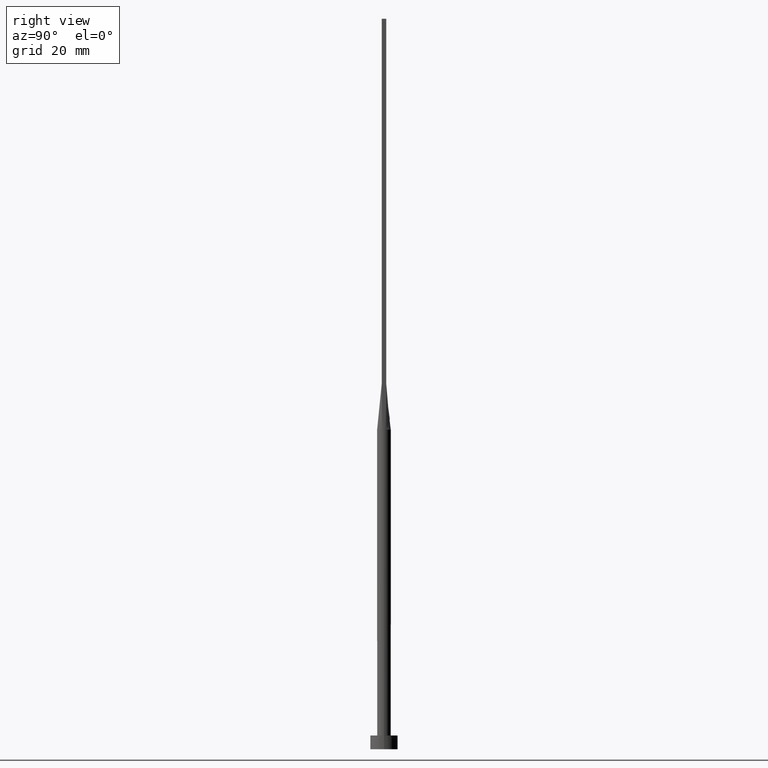
[diagram: clean part render]
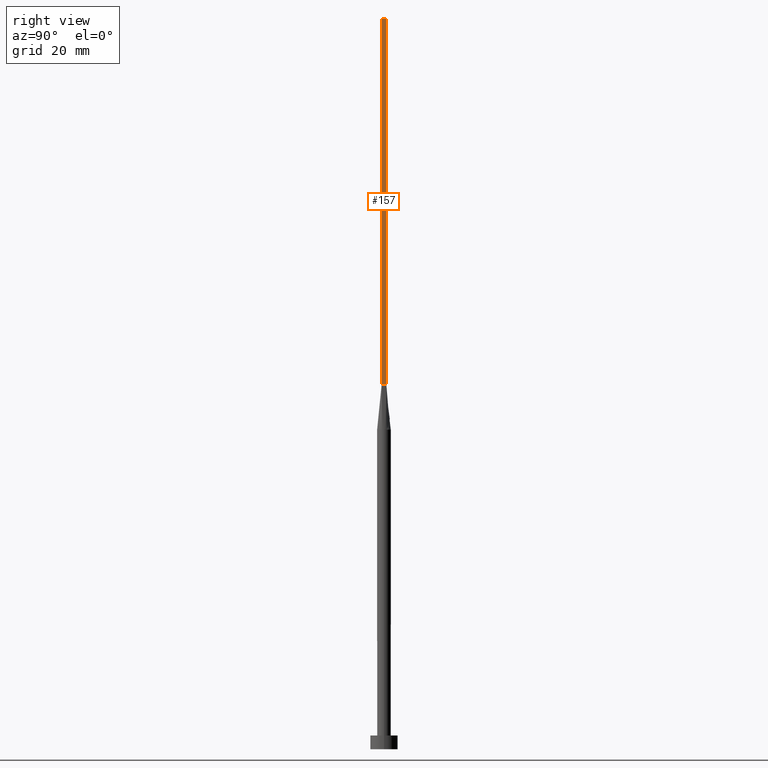
[diagram: same view with one face highlighted and labeled with its STEP entity id]
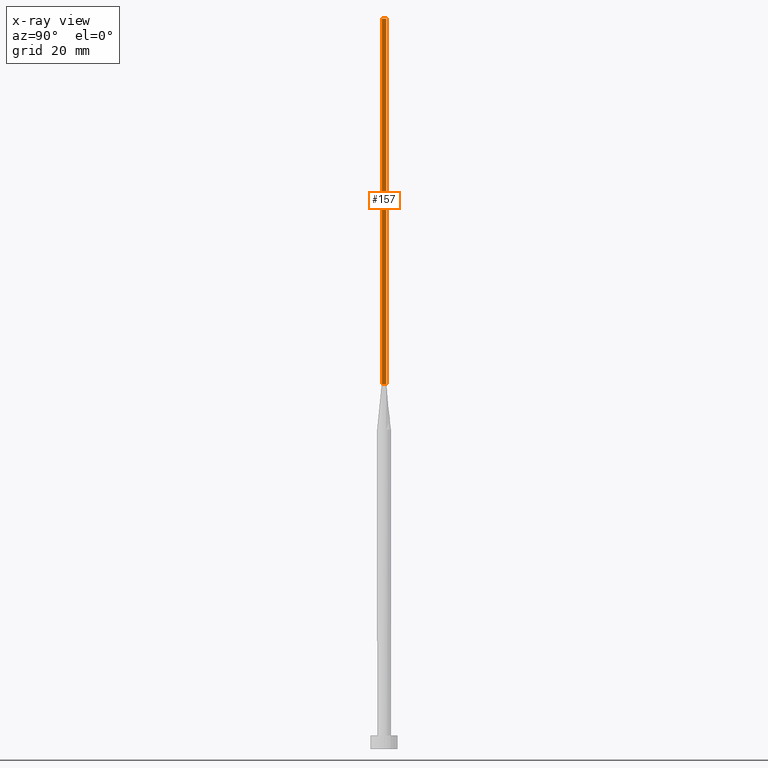
[diagram: x-ray of the same camera — body ghosted, the highlighted face saturated]
A machine part, right view. The second image highlights one B-rep face of the part: STEP entity #157.
The next image is the same camera in x-ray: the body ghosted, the highlighted face saturated — about 0% of this face is hidden behind the body in this view.
In plain terms, the highlighted planar face has unit normal (-1, -0, 0).
Its self-contained STEP definition (entity closure, byte-faithful):
#28 = CARTESIAN_POINT ( 'NONE',  ( 1.399999999999999911, -0.4999999999999997780, 160.0000000000000000 ) ) ;
#48 = VERTEX_POINT ( 'NONE', #337 ) ;
#76 = EDGE_CURVE ( 'NONE', #468, #323, #384, .T. ) ;
#77 = VECTOR ( 'NONE', #550, 1000.000000000000000 ) ;
#85 = ORIENTED_EDGE ( 'NONE', *, *, #464, .F. ) ;
#111 = DIRECTION ( 'NONE',  ( -2.168404344971008868E-16, 1.000000000000000000, -0.000000000000000000 ) ) ;
#123 = CARTESIAN_POINT ( 'NONE',  ( 1.399999999999999911, -0.4999999999999997780, 80.00000000000000000 ) ) ;
#126 = VECTOR ( 'NONE', #304, 1000.000000000000000 ) ;
#129 = CARTESIAN_POINT ( 'NONE',  ( 1.399999999999999689, 0.5000000000000002220, 160.0000000000000000 ) ) ;
#157 = ADVANCED_FACE ( 'NONE', ( #217 ), #257, .F. ) ;
#168 = EDGE_LOOP ( 'NONE', ( #343, #85, #458, #410 ) ) ;
#174 = LINE ( 'NONE', #129, #126 ) ;
#192 = LINE ( 'NONE', #378, #77 ) ;
#194 = DIRECTION ( 'NONE',  ( -0.000000000000000000, -0.000000000000000000, -1.000000000000000000 ) ) ;
#217 = FACE_OUTER_BOUND ( 'NONE', #168, .T. ) ;
#223 = DIRECTION ( 'NONE',  ( -1.000000000000000000, -2.168404344971008868E-16, 0.000000000000000000 ) ) ;
#235 = CARTESIAN_POINT ( 'NONE',  ( 1.399999999999999689, 0.5000000000000002220, 80.00000000000000000 ) ) ;
#257 = PLANE ( 'NONE',  #510 ) ;
#304 = DIRECTION ( 'NONE',  ( -0.000000000000000000, -0.000000000000000000, -1.000000000000000000 ) ) ;
#317 = VECTOR ( 'NONE', #111, 1000.000000000000000 ) ;
#321 = CARTESIAN_POINT ( 'NONE',  ( 1.399999999999999689, 0.5000000000000002220, 160.0000000000000000 ) ) ;
#323 = VERTEX_POINT ( 'NONE', #235 ) ;
#337 = CARTESIAN_POINT ( 'NONE',  ( 1.399999999999999911, -0.4999999999999997780, 160.0000000000000000 ) ) ;
#343 = ORIENTED_EDGE ( 'NONE', *, *, #76, .T. ) ;
#346 = VECTOR ( 'NONE', #194, 1000.000000000000000 ) ;
#352 = VERTEX_POINT ( 'NONE', #321 ) ;
#378 = CARTESIAN_POINT ( 'NONE',  ( 1.399999999999999911, -0.4999999999999997780, 160.0000000000000000 ) ) ;
#384 = LINE ( 'NONE', #559, #317 ) ;
#401 = CARTESIAN_POINT ( 'NONE',  ( 1.399999999999999911, -0.4999999999999997780, 160.0000000000000000 ) ) ;
#410 = ORIENTED_EDGE ( 'NONE', *, *, #565, .T. ) ;
#435 = LINE ( 'NONE', #28, #346 ) ;
#436 = EDGE_CURVE ( 'NONE', #48, #352, #192, .T. ) ;
#458 = ORIENTED_EDGE ( 'NONE', *, *, #436, .F. ) ;
#464 = EDGE_CURVE ( 'NONE', #352, #323, #174, .T. ) ;
#468 = VERTEX_POINT ( 'NONE', #123 ) ;
#487 = DIRECTION ( 'NONE',  ( 2.168404344971008868E-16, -1.000000000000000000, 0.000000000000000000 ) ) ;
#510 = AXIS2_PLACEMENT_3D ( 'NONE', #401, #223, #487 ) ;
#550 = DIRECTION ( 'NONE',  ( -2.168404344971008868E-16, 1.000000000000000000, 0.000000000000000000 ) ) ;
#559 = CARTESIAN_POINT ( 'NONE',  ( 1.399999999999999689, 0.5000000000000002220, 80.00000000000000000 ) ) ;
#565 = EDGE_CURVE ( 'NONE', #48, #468, #435, .T. ) ;